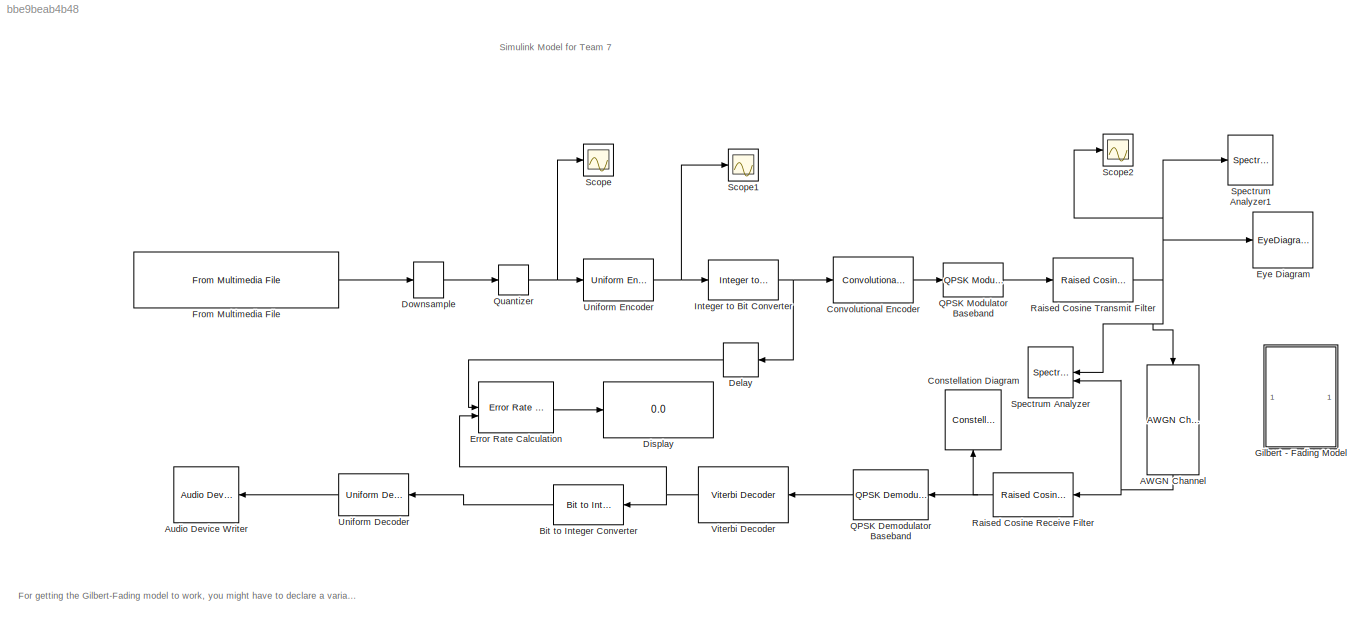
MODEL slx_bbe9beab4b48
KIND model
CONFIG AbsTol = auto
CONFIG EnableMultiTasking = off
CONFIG FixedStep = auto
CONFIG MaxStep = auto
CONFIG MinStep = auto
CONFIG RelTol = 1e-3
CONFIG SampleTimeConstraint = Unconstrained
CONFIG SolverName = VariableStepAuto
CONFIG StartTime = 0.0
CONFIG StopTime = 20
BLOCK [Reference] AWGN Channel  REF=commchan3/AWGN
Channel
  NameLocation = left
  SourceBlock = commchan3/AWGN\nChannel
  SourceType = AWGN Channel
BLOCK [Reference] Audio Device Writer  REF=dspsnks4/Audio Device
Writer
  LibrarySourceBlock = audiosinks/Audio Device\nWriter
  NameLocation = top
  SourceBlock = dspsnks4/Audio Device\nWriter
  SourceType = Audio Device Writer
BLOCK [Reference] Bit to Integer Converter  REF=simulink/Logic and Bit
Operations/Bit to Integer
Converter
  NameLocation = top
  SourceBlock = simulink/Logic and Bit\nOperations/Bit to Integer\nConverter
  SourceType = Bit to Integer Converter
BLOCK [ConstellationDiagram] Constellation Diagram
  DefaultConfigurationName = comm.scopes.ConstellationDiagramBlockCfg
  GraphicalSettings = {"Style":{"BackgroundColor":[0.9607843137254902,0.9607843137254902,0.9607843137254902],"AxesColor":[1,1,1],"LabelsColor":[0.12941176470588237,0.12941176470588237,0.12941176470588237],"LineStyle":["NONE","NONE"],"LineColor":[[0.06666666666666667,0.44313725490196076,0.7450980392156863],[1,0,0]],"LineWidth":[1,1],"Marker":[".","+"],"IsRefLine":[false,true],"FontSize":"small"}}
  NameLocation = right
  ScopeFrameLocation = window
  ScopeSpecificationString = comm.scopes.ConstellationDiagramBlockCfg('CurrentConfiguration', extmgr.ConfigurationSet(extmgr.Configuration('Tools','Measurements',true),extmgr.Configuration('Core','General UI',true,'ShowNewAction',false,'ShowLoadConfigSet',false,'ShowSaveConfigSet',false,'FigureColor',[0.156862745098039 0.156862745098039 0.156862745098039]),extmgr.Configuration('Tools','Plot Navigation',true,'XDataDisplay',80,...<+365ch>
  WasSavedAsWebScope = on
  WindowPosition = [10.000000,66.000000,600.000000,600.000000,]
BLOCK [Reference] Convolutional Encoder  REF=commcnvcod2/Convolutional
Encoder
  LibrarySourceBlock = commhdlcnvcod/Convolutional\nEncoder
  SourceBlock = commcnvcod2/Convolutional\nEncoder
  SourceType = Convolutional Encoder
BLOCK [Delay] Delay
  DelayLength = 3
  InitialCondition = 0
  InputPortMap = u0
  NameLocation = top
BLOCK [Display] Display
  Decimation = 1
BLOCK [DownSample] Downsample
  N = 6
  RateOptions = Allow multirate processing
BLOCK [Reference] Error Rate Calculation  REF=commsink2/Error Rate
Calculation
  SourceBlock = commsink2/Error Rate\nCalculation
  SourceType = Error Rate Calculation
BLOCK [EyeDiagramBlock] Eye Diagram
  ScopeFrameLocation = window
  WasSavedAsWebScope = on
  WindowPosition = [641.000000,120.000000,800.000000,500.000000,]
BLOCK [Reference] From Multimedia File  REF=dspvision/From Multimedia File
  LibrarySourceBlock = audiosources/From Multimedia File
  SourceBlock = dspvision/From Multimedia File
  SourceType = From Multimedia File
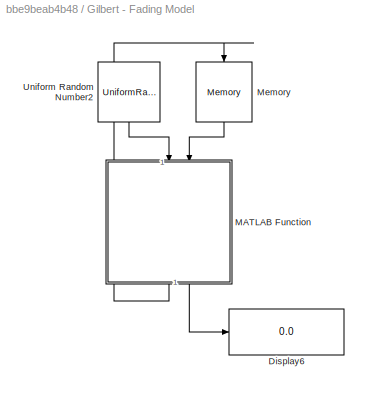
BLOCK [SubSystem] Gilbert - Fading Model
BLOCK [Display] Gilbert - Fading Model/Display6
  Decimation = 1
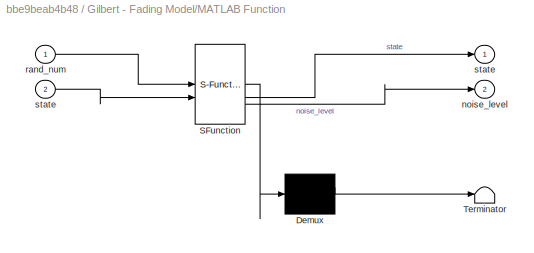
BLOCK [SubSystem] Gilbert - Fading Model/MATLAB Function
  ErrorFcn = Stateflow.Translate.translate
  NameLocation = left
  PermitHierarchicalResolution = ExplicitOnly
  SFBlockType = MATLAB Function
  TreatAsAtomicUnit = on
BLOCK [Demux] Gilbert - Fading Model/MATLAB Function/ Demux 
  Outputs = 1
BLOCK [S-Function] Gilbert - Fading Model/MATLAB Function/ SFunction 
  EnableBusSupport = on
  FunctionName = sf_sfun
  PortCounts = [2 3]
  SFcnIsStateOwnerBlock = off
  SFunctionDeploymentMode = off
  Tag = Stateflow S-Function 2
BLOCK [Terminator] Gilbert - Fading Model/MATLAB Function/ Terminator 
BLOCK [Outport] Gilbert - Fading Model/MATLAB Function/noise_level
  Port = 2
BLOCK [Inport] Gilbert - Fading Model/MATLAB Function/rand_num
BLOCK [Outport] Gilbert - Fading Model/MATLAB Function/state
BLOCK [Inport] Gilbert - Fading Model/MATLAB Function/state 
  Port = 2
BLOCK [Memory] Gilbert - Fading Model/Memory
  InitialCondition = 1
  NameLocation = left
  StateName = snr
BLOCK [UniformRandomNumber] Gilbert - Fading Model/Uniform Random Number2
  NameLocation = left
  SampleTime = 0.1
  Seed = 3
BLOCK [Reference] Integer to Bit Converter  REF=simulink/Logic and Bit
Operations/Integer to Bit
Converter
  SourceBlock = simulink/Logic and Bit\nOperations/Integer to Bit\nConverter
  SourceType = Integer to Bit Converter
BLOCK [Reference] QPSK Demodulator Baseband  REF=commdigbbndpm3/QPSK
Demodulator
Baseband
  LibrarySourceBlock = commhdldigbbndpm/QPSK\nDemodulator\nBaseband
  NameLocation = top
  SourceBlock = commdigbbndpm3/QPSK\nDemodulator\nBaseband
  SourceType = QPSK Demodulator Baseband
BLOCK [Reference] QPSK Modulator Baseband  REF=commdigbbndpm3/QPSK
Modulator
Baseband
  LibrarySourceBlock = commhdldigbbndpm/QPSK\nModulator\nBaseband
  SourceBlock = commdigbbndpm3/QPSK\nModulator\nBaseband
  SourceType = QPSK Modulator Baseband
BLOCK [Quantizer] Quantizer
  QuantizationInterval = 0.0625
BLOCK [Reference] Raised Cosine Receive Filter  REF=commfilt2/Raised Cosine
Receive Filter
  LibrarySourceBlock = commhdlfilt/Raised Cosine\nReceive Filter
  NameLocation = top
  SourceBlock = commfilt2/Raised Cosine\nReceive Filter
  SourceType = Raised Cosine Receive Filter
  UserDataPersistent = on
BLOCK [Reference] Raised Cosine Transmit Filter  REF=commfilt2/Raised Cosine
Transmit Filter
  LibrarySourceBlock = commhdlfilt/Raised Cosine\nTransmit Filter
  SourceBlock = commfilt2/Raised Cosine\nTransmit Filter
  SourceType = Raised Cosine Transmit Filter
  UserDataPersistent = on
BLOCK [Scope] Scope
  Floating = off
  NumInputPorts = 1
  ScopeSpecificationString = Simulink.scopes.TimeScopeBlockCfg('CurrentConfiguration', extmgr.ConfigurationSet(extmgr.Configuration('Core','General UI',true),extmgr.Configuration('Core','Source UI',true),extmgr.Configuration('Sources','WiredSimulink',true,'DataLoggingVariableName','ScopeData2'),extmgr.Configuration('Visuals','Time Domain',true,'InputProcessing','FrameProcessing','SerializedDisplays',{struct('MinYLimReal','-0....<+1548ch>
BLOCK [Scope] Scope1
  Commented = on
  Floating = off
  NumInputPorts = 1
  ScopeSpecificationString = Simulink.scopes.TimeScopeBlockCfg('CurrentConfiguration', extmgr.ConfigurationSet(extmgr.Configuration('Core','General UI',true),extmgr.Configuration('Core','Source UI',true),extmgr.Configuration('Sources','WiredSimulink',true,'DataLoggingVariableName','ScopeData1'),extmgr.Configuration('Visuals','Time Domain',true,'SerializedDisplays',{struct('MinYLimReal','-10.00000','MaxYLimReal','10.00000','YL...<+23941ch>
BLOCK [Scope] Scope2
  Floating = off
  NumInputPorts = 1
  ScopeSpecificationString = Simulink.scopes.TimeScopeBlockCfg('CurrentConfiguration', extmgr.ConfigurationSet(extmgr.Configuration('Core','General UI',true),extmgr.Configuration('Core','Source UI',true),extmgr.Configuration('Sources','WiredSimulink',true,'DataLoggingVariableName','ScopeData1'),extmgr.Configuration('Visuals','Time Domain',true,'InputProcessing','FrameProcessing','SerializedDisplays',{struct('MinYLimReal','-2....<+1656ch>
BLOCK [SpectrumAnalyzer] Spectrum Analyzer
  ExpandToolstrip = on
  GraphicalSettings = {"GraphicalSettings":{"Style":{"BackgroundColor":[0.12941176470588237,0.12941176470588237,0.12941176470588237],"AxesColor":[0.07058823529411765,0.07058823529411765,0.07058823529411765],"LabelsColor":[0.8509803921568627,0.8509803921568627,0.8509803921568627],"PreserveColors":false,"Visible":[true,true],"LineStyle":["-","-"],"LineColor":[[1,0.9098039215686274,0.39215686274509803],[0.1490196078431372...<+1067ch>
  NameLocation = top
  NumInputPorts = 2
  ScopeFrameLocation = window
  SelectedToolstripTab = spectrumAnalyzerToolstrip.measurementsTab
  ShowLegend = on
  Span = 128000
  StartFrequency = -64000
  StopFrequency = 64000
  WasSavedAsWebScope = on
  WindowPosition = [266.000000,43.000000,960.000000,623.000000,]
  YLimits = [-112.75255665,27.3826655]
BLOCK [SpectrumAnalyzer] Spectrum Analyzer1
  Commented = on
  ExpandToolstrip = on
  GraphicalSettings = {"GraphicalSettings":{"Style":{"BackgroundColor":[0.12941176470588237,0.12941176470588237,0.12941176470588237],"AxesColor":[0.07058823529411765,0.07058823529411765,0.07058823529411765],"LabelsColor":[0.8509803921568627,0.8509803921568627,0.8509803921568627],"PreserveColors":false,"Visible":[true],"LineStyle":["-"],"LineColor":[[1,0.9098039215686274,0.39215686274509803]],"LineWidth":[1.5],"Marker":...<+960ch>
  ScopeFrameLocation = window
  SelectedToolstripTab = spectrumAnalyzerToolstrip.measurementsTab
  Span = 1024000
  StartFrequency = -512000
  StopFrequency = 512000
  WasSavedAsWebScope = on
  WindowPosition = [279.000000,83.000000,800.000000,500.000000,]
  YLimits = [-115.66449024,36.4322386]
BLOCK [Reference] Uniform Decoder  REF=dspquant2/Uniform
Decoder
  NameLocation = top
  SourceBlock = dspquant2/Uniform\nDecoder
  SourceType = Uniform Decoder
BLOCK [Reference] Uniform Encoder  REF=dspquant2/Uniform
Encoder
  SourceBlock = dspquant2/Uniform\nEncoder
  SourceType = Uniform Encoder
BLOCK [Reference] Viterbi Decoder  REF=commcnvcod2/Viterbi Decoder
  LibrarySourceBlock = commhdlcnvcod/Viterbi Decoder
  NameLocation = top
  SourceBlock = commcnvcod2/Viterbi Decoder
  SourceType = Viterbi Decoder
ANNOTATION (root): For getting the Gilbert-Fading model to work, you might have to declare a variable called snr=21 or snr = 9 in the workspace
ANNOTATION (root): Simulink Model for Team 7
NET AWGN Channel:1 -> Raised Cosine Receive Filter:1, Spectrum Analyzer:2
LINE Bit to Integer Converter:1 -> Uniform Decoder:1
LINE Convolutional Encoder:1 -> QPSK Modulator Baseband:1
LINE Delay:1 -> Error Rate Calculation:1
LINE Downsample:1 -> Quantizer:1
LINE Error Rate Calculation:1 -> Display:1
LINE From Multimedia File:1 -> Downsample:1
LINE Gilbert - Fading Model/MATLAB Function:1 -> Gilbert - Fading Model/Memory:1
LINE Gilbert - Fading Model/MATLAB Function:2 -> Gilbert - Fading Model/Display6:1
LINE Gilbert - Fading Model/Memory:1 -> Gilbert - Fading Model/MATLAB Function:2
LINE Gilbert - Fading Model/Uniform Random Number2:1 -> Gilbert - Fading Model/MATLAB Function:1
NET Integer to Bit Converter:1 -> Convolutional Encoder:1, Delay:1
LINE QPSK Demodulator Baseband:1 -> Viterbi Decoder:1
LINE QPSK Modulator Baseband:1 -> Raised Cosine Transmit Filter:1
NET Quantizer:1 -> Scope:1, Uniform Encoder:1
NET Raised Cosine Receive Filter:1 -> Constellation Diagram:1, QPSK Demodulator Baseband:1
NET Raised Cosine Transmit Filter:1 -> AWGN Channel:1, Eye Diagram:1, Scope2:1, Spectrum Analyzer1:1, Spectrum Analyzer:1
LINE Uniform Decoder:1 -> Audio Device Writer:1
NET Uniform Encoder:1 -> Integer to Bit Converter:1, Scope1:1
NET Viterbi Decoder:1 -> Bit to Integer Converter:1, Error Rate Calculation:2
note: NET lines group one-source signal fan-out (src -> all destinations, sorted); 1:1 wires keep LINE
CHART Gilbert - Fading Model/MATLAB Function states=1 transitions=1
  STATE_LABEL 'eML_blk_kernel()'
  STATE_LABEL 'SCRIPT:\nfunction [state, noise_level] = gilbert_fading(rand_num, state)%inputs are rand_num, state. Outputs are state, noise_level\n    % Transition probabilities\n    P_good_to_bad = 0.07;\n    P_bad_to_good = 0.15;\n    snr = 21;\n\n    % Noise levels\n    snr_good = 21; % snr in Good state\n    snr_bad = 9;  % snr in Bad state\n\n    switch state\n        case 1 % Good state\n            if rand_num < P_go...<+659ch>'
CHART  states=0 transitions=0
